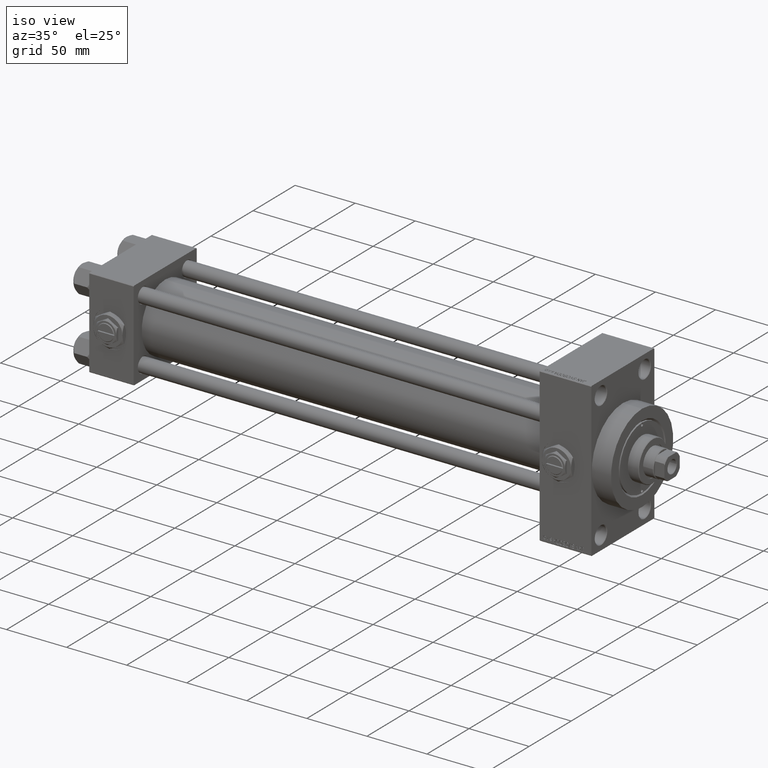
[diagram: clean part render]
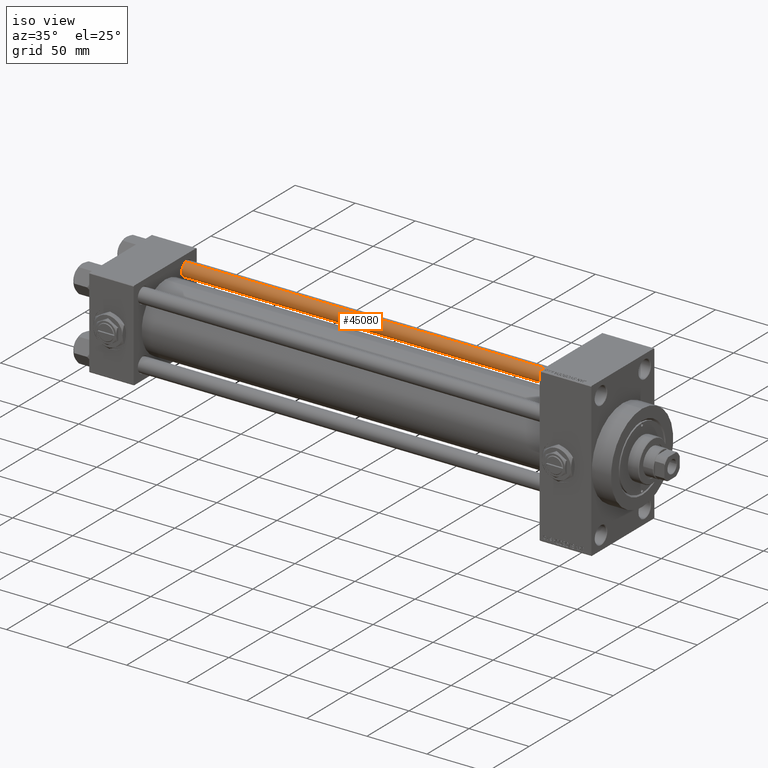
[diagram: same view with one face highlighted and labeled with its STEP entity id]
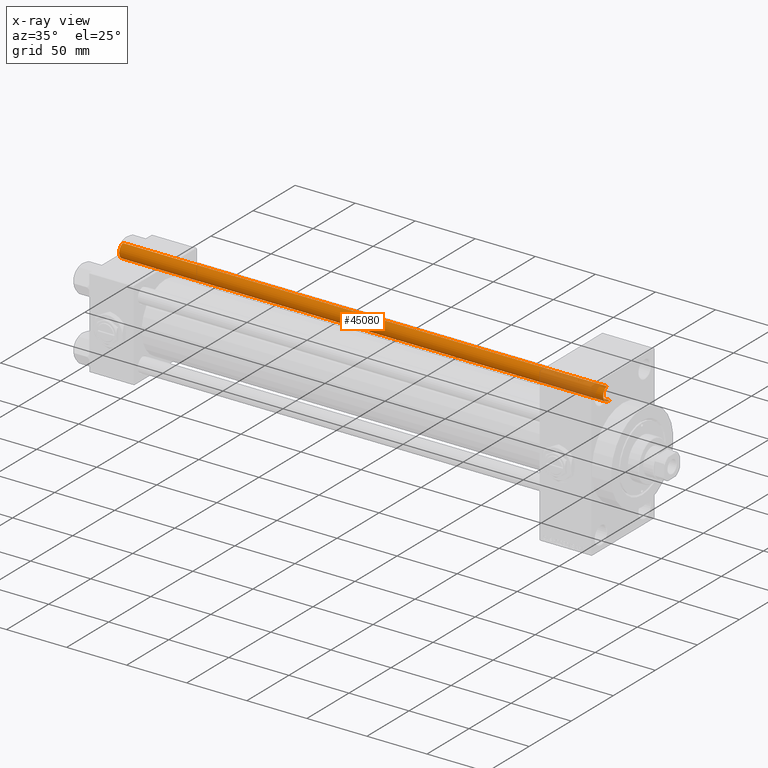
[diagram: x-ray of the same camera — body ghosted, the highlighted face saturated]
A machine part, iso view. The second image highlights one B-rep face of the part: STEP entity #45080.
The next image is the same camera in x-ray: the body ghosted, the highlighted face saturated — about 12% of this face is hidden behind the body in this view.
In plain terms, the highlighted cylindrical surface (edge-blend (fillet) strip) has radius 6 mm, axis along (-1, -0, 0).
Its self-contained STEP definition (entity closure, byte-faithful):
#191 = DIRECTION ( 'NONE',  ( 1.000000000000000000, 0.000000000000000000, 0.000000000000000000 ) ) ;
#951 = CARTESIAN_POINT ( 'NONE',  ( -6.000000000000000888, 0.000000000000000000, 404.0000000000000000 ) ) ;
#2146 = DIRECTION ( 'NONE',  ( -0.000000000000000000, -0.000000000000000000, -1.000000000000000000 ) ) ;
#2648 = CARTESIAN_POINT ( 'NONE',  ( 6.000000000000000888, 7.347880794884120722E-16, 404.0000000000000000 ) ) ;
#5640 = DIRECTION ( 'NONE',  ( -0.000000000000000000, -0.000000000000000000, 1.000000000000000000 ) ) ;
#7540 = ORIENTED_EDGE ( 'NONE', *, *, #23508, .T. ) ;
#7741 = DIRECTION ( 'NONE',  ( -0.000000000000000000, -0.000000000000000000, -1.000000000000000000 ) ) ;
#10208 = EDGE_LOOP ( 'NONE', ( #13264, #19845, #7540, #14211 ) ) ;
#11301 = CARTESIAN_POINT ( 'NONE',  ( -6.000000000000000888, 0.000000000000000000, 0.5000000000000559552 ) ) ;
#11521 = CARTESIAN_POINT ( 'NONE',  ( 6.000000000000000888, 7.347880794884120722E-16, 403.5000000000000000 ) ) ;
#13227 = VERTEX_POINT ( 'NONE', #11521 ) ;
#13264 = ORIENTED_EDGE ( 'NONE', *, *, #29826, .F. ) ;
#14211 = ORIENTED_EDGE ( 'NONE', *, *, #37950, .T. ) ;
#14360 = CIRCLE ( 'NONE', #48700, 6.000000000000000888 ) ;
#16755 = VECTOR ( 'NONE', #2146, 1000.000000000000000 ) ;
#19729 = CARTESIAN_POINT ( 'NONE',  ( -6.000000000000000888, 0.000000000000000000, 403.5000000000000000 ) ) ;
#19845 = ORIENTED_EDGE ( 'NONE', *, *, #44707, .T. ) ;
#19995 = LINE ( 'NONE', #951, #38857 ) ;
#20902 = DIRECTION ( 'NONE',  ( 1.000000000000000000, 0.000000000000000000, 0.000000000000000000 ) ) ;
#22198 = DIRECTION ( 'NONE',  ( -1.000000000000000000, 0.000000000000000000, 0.000000000000000000 ) ) ;
#22268 = AXIS2_PLACEMENT_3D ( 'NONE', #32906, #5640, #20902 ) ;
#23183 = AXIS2_PLACEMENT_3D ( 'NONE', #46613, #33697, #22198 ) ;
#23239 = DIRECTION ( 'NONE',  ( 0.000000000000000000, 0.000000000000000000, -1.000000000000000000 ) ) ;
#23508 = EDGE_CURVE ( 'NONE', #33707, #23879, #19995, .T. ) ;
#23879 = VERTEX_POINT ( 'NONE', #11301 ) ;
#26447 = CYLINDRICAL_SURFACE ( 'NONE', #23183, 6.000000000000000888 ) ;
#29063 = CARTESIAN_POINT ( 'NONE',  ( 6.000000000000000888, 7.347880794884120722E-16, 0.5000000000000559552 ) ) ;
#29826 = EDGE_CURVE ( 'NONE', #13227, #47360, #47441, .T. ) ;
#32906 = CARTESIAN_POINT ( 'NONE',  ( 0.000000000000000000, 0.000000000000000000, 0.5000000000000559552 ) ) ;
#33697 = DIRECTION ( 'NONE',  ( -0.000000000000000000, -0.000000000000000000, -1.000000000000000000 ) ) ;
#33707 = VERTEX_POINT ( 'NONE', #19729 ) ;
#34750 = CARTESIAN_POINT ( 'NONE',  ( 0.000000000000000000, 0.000000000000000000, 403.5000000000000000 ) ) ;
#37950 = EDGE_CURVE ( 'NONE', #23879, #47360, #45411, .T. ) ;
#38857 = VECTOR ( 'NONE', #7741, 1000.000000000000000 ) ;
#41930 = FACE_OUTER_BOUND ( 'NONE', #10208, .T. ) ;
#44707 = EDGE_CURVE ( 'NONE', #13227, #33707, #14360, .T. ) ;
#45080 = ADVANCED_FACE ( 'NONE', ( #41930 ), #26447, .T. ) ;
#45411 = CIRCLE ( 'NONE', #22268, 6.000000000000000888 ) ;
#46613 = CARTESIAN_POINT ( 'NONE',  ( 0.000000000000000000, 0.000000000000000000, 404.0000000000000000 ) ) ;
#47360 = VERTEX_POINT ( 'NONE', #29063 ) ;
#47441 = LINE ( 'NONE', #2648, #16755 ) ;
#48700 = AXIS2_PLACEMENT_3D ( 'NONE', #34750, #23239, #191 ) ;